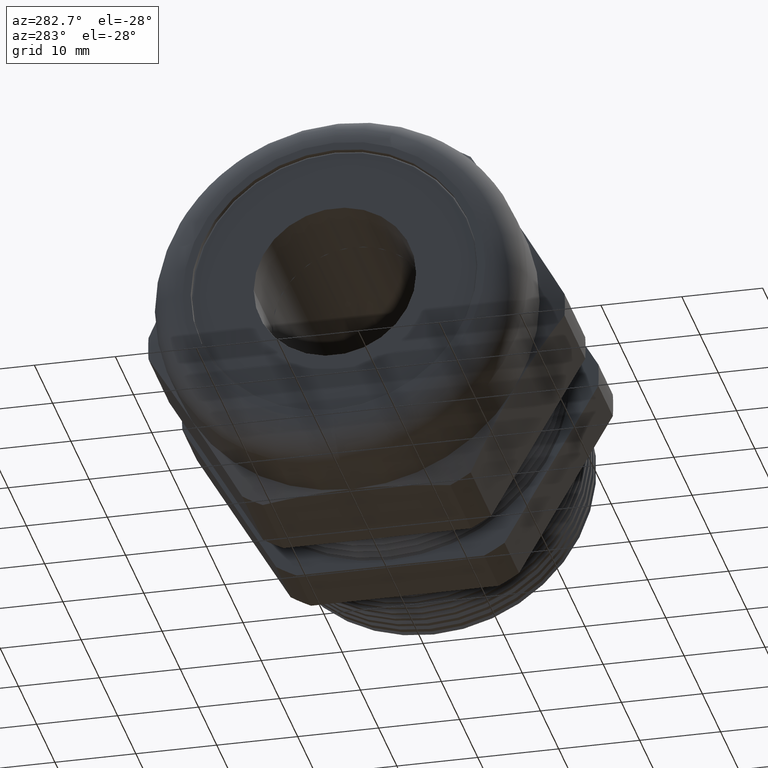
[diagram: clean part render]
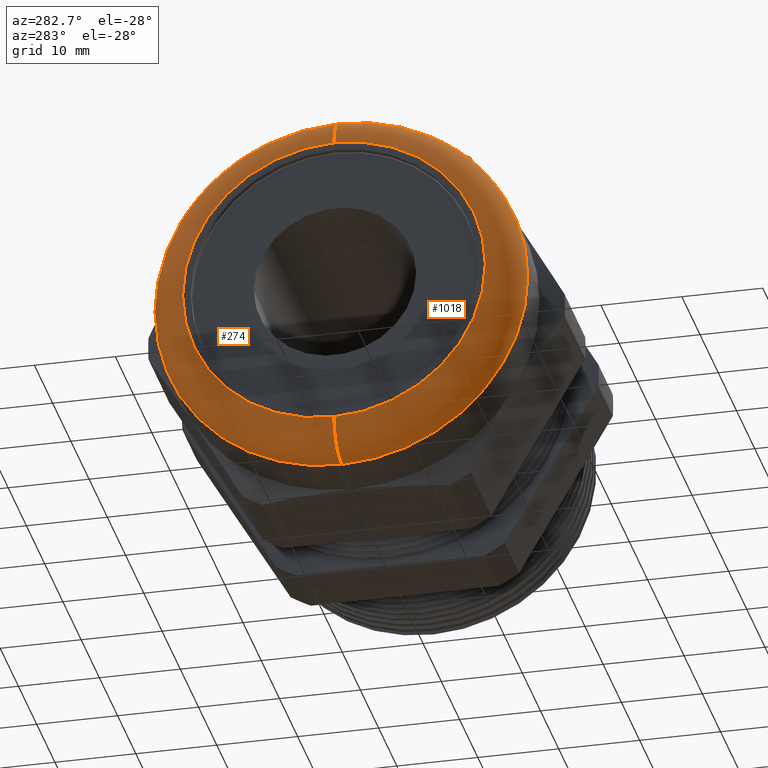
[diagram: same view with one multi-face feature highlighted, each face labeled with its STEP entity id]
A machine part, auxiliary view. The highlighted faces form ONE feature: a constant-radius fillet chain: 2 tangent blend faces with common blend radius 4.2824 mm. The faces share edges in the B-rep.
Their STEP definitions:
[1] entity #274 (Torus):
#250 = ORIENTED_EDGE ( 'NONE', *, *, #263, .F. ) ;
#263 = EDGE_CURVE ( 'NONE', #270, #266, #1585, .T. ) ;
#264 = ORIENTED_EDGE ( 'NONE', *, *, #267, .F. ) ;
#265 = VERTEX_POINT ( 'NONE', #1580 ) ;
#266 = VERTEX_POINT ( 'NONE', #1579 ) ;
#267 = EDGE_CURVE ( 'NONE', #266, #265, #1576, .T. ) ;
#268 = EDGE_CURVE ( 'NONE', #269, #270, #1636, .T. ) ;
#269 = VERTEX_POINT ( 'NONE', #1631 ) ;
#270 = VERTEX_POINT ( 'NONE', #1630 ) ;
#271 = EDGE_CURVE ( 'NONE', #269, #265, #1628, .T. ) ;
#272 = ORIENTED_EDGE ( 'NONE', *, *, #271, .T. ) ;
#273 = ORIENTED_EDGE ( 'NONE', *, *, #268, .F. ) ;
#274 = ADVANCED_FACE ( 'NONE', ( #1629 ), #1622, .T. ) ;
#277 = EDGE_LOOP ( 'NONE', ( #273, #272, #264, #250 ) ) ;
#1324 = DIRECTION ( 'NONE',  ( 0.0000000000000000000, 0.0000000000000000000, -1.000000000000000000 ) ) ;
#1573 = DIRECTION ( 'NONE',  ( 1.000000000000000000, 0.0000000000000000000, 0.0000000000000000000 ) ) ;
#1574 = CARTESIAN_POINT ( 'NONE',  ( -1.361399999999999900, 0.0000000000000000000, 0.0000000000000000000 ) ) ;
#1575 = AXIS2_PLACEMENT_3D ( 'NONE', #1574, #1573, #1324 ) ;
#1576 = CIRCLE ( 'NONE', #1575, 0.9049999999999999200 ) ;
#1579 = CARTESIAN_POINT ( 'NONE',  ( -1.361399999999999900, 1.108305353228354500E-016, -0.9049999999999999200 ) ) ;
#1580 = CARTESIAN_POINT ( 'NONE',  ( -1.361399999999999900, 0.0000000000000000000, 0.9049999999999999200 ) ) ;
#1581 = DIRECTION ( 'NONE',  ( 0.0000000000000000000, 0.0000000000000000000, -1.000000000000000000 ) ) ;
#1582 = DIRECTION ( 'NONE',  ( 0.0000000000000000000, -1.000000000000000000, 0.0000000000000000000 ) ) ;
#1583 = CARTESIAN_POINT ( 'NONE',  ( -1.361399999999999900, 0.0000000000000000000, -0.7363999999999998300 ) ) ;
#1584 = AXIS2_PLACEMENT_3D ( 'NONE', #1583, #1582, #1581 ) ;
#1585 = CIRCLE ( 'NONE', #1584, 0.1686000000000000800 ) ;
#1619 = DIRECTION ( 'NONE',  ( 0.0000000000000000000, 0.0000000000000000000, -1.000000000000000000 ) ) ;
#1620 = DIRECTION ( 'NONE',  ( 1.000000000000000000, 0.0000000000000000000, 0.0000000000000000000 ) ) ;
#1621 = AXIS2_PLACEMENT_3D ( 'NONE', #1623, #1620, #1619 ) ;
#1622 = TOROIDAL_SURFACE ( 'NONE', #1621, 0.7363999999999998300, 0.1686000000000001100 ) ;
#1623 = CARTESIAN_POINT ( 'NONE',  ( -1.361399999999999900, 0.0000000000000000000, 0.0000000000000000000 ) ) ;
#1624 = DIRECTION ( 'NONE',  ( 0.0000000000000000000, 1.224646799147353900E-016, 1.000000000000000000 ) ) ;
#1625 = DIRECTION ( 'NONE',  ( 0.0000000000000000000, 1.000000000000000000, -1.224646799147353200E-016 ) ) ;
#1626 = CARTESIAN_POINT ( 'NONE',  ( -1.361399999999999900, 9.018299028921107300E-017, 0.7363999999999998300 ) ) ;
#1627 = AXIS2_PLACEMENT_3D ( 'NONE', #1626, #1625, #1624 ) ;
#1628 = CIRCLE ( 'NONE', #1627, 0.1686000000000000800 ) ;
#1629 = FACE_OUTER_BOUND ( 'NONE', #277, .T. ) ;
#1630 = CARTESIAN_POINT ( 'NONE',  ( -1.530000000000000000, 0.0000000000000000000, -0.7363999999999998300 ) ) ;
#1631 = CARTESIAN_POINT ( 'NONE',  ( -1.530000000000000000, 1.005067628060232600E-016, 0.7363999999999998300 ) ) ;
#1632 = DIRECTION ( 'NONE',  ( 0.0000000000000000000, 0.0000000000000000000, -1.000000000000000000 ) ) ;
#1633 = DIRECTION ( 'NONE',  ( -1.000000000000000000, 0.0000000000000000000, 0.0000000000000000000 ) ) ;
#1634 = CARTESIAN_POINT ( 'NONE',  ( -1.530000000000000000, 0.0000000000000000000, 0.0000000000000000000 ) ) ;
#1635 = AXIS2_PLACEMENT_3D ( 'NONE', #1634, #1633, #1632 ) ;
#1636 = CIRCLE ( 'NONE', #1635, 0.7363999999999998300 ) ;
[2] entity #1018 (Torus):
#263 = EDGE_CURVE ( 'NONE', #270, #266, #1585, .T. ) ;
#265 = VERTEX_POINT ( 'NONE', #1580 ) ;
#266 = VERTEX_POINT ( 'NONE', #1579 ) ;
#269 = VERTEX_POINT ( 'NONE', #1631 ) ;
#270 = VERTEX_POINT ( 'NONE', #1630 ) ;
#271 = EDGE_CURVE ( 'NONE', #269, #265, #1628, .T. ) ;
#968 = EDGE_LOOP ( 'NONE', ( #1019, #1020, #1021, #1022 ) ) ;
#1018 = ADVANCED_FACE ( 'NONE', ( #3011 ), #3010, .T. ) ;
#1019 = ORIENTED_EDGE ( 'NONE', *, *, #271, .F. ) ;
#1020 = ORIENTED_EDGE ( 'NONE', *, *, #3854, .F. ) ;
#1021 = ORIENTED_EDGE ( 'NONE', *, *, #263, .T. ) ;
#1022 = ORIENTED_EDGE ( 'NONE', *, *, #4008, .F. ) ;
#1579 = CARTESIAN_POINT ( 'NONE',  ( -1.361399999999999900, 1.108305353228354500E-016, -0.9049999999999999200 ) ) ;
#1580 = CARTESIAN_POINT ( 'NONE',  ( -1.361399999999999900, 0.0000000000000000000, 0.9049999999999999200 ) ) ;
#1581 = DIRECTION ( 'NONE',  ( 0.0000000000000000000, 0.0000000000000000000, -1.000000000000000000 ) ) ;
#1582 = DIRECTION ( 'NONE',  ( 0.0000000000000000000, -1.000000000000000000, 0.0000000000000000000 ) ) ;
#1583 = CARTESIAN_POINT ( 'NONE',  ( -1.361399999999999900, 0.0000000000000000000, -0.7363999999999998300 ) ) ;
#1584 = AXIS2_PLACEMENT_3D ( 'NONE', #1583, #1582, #1581 ) ;
#1585 = CIRCLE ( 'NONE', #1584, 0.1686000000000000800 ) ;
#1624 = DIRECTION ( 'NONE',  ( 0.0000000000000000000, 1.224646799147353900E-016, 1.000000000000000000 ) ) ;
#1625 = DIRECTION ( 'NONE',  ( 0.0000000000000000000, 1.000000000000000000, -1.224646799147353200E-016 ) ) ;
#1626 = CARTESIAN_POINT ( 'NONE',  ( -1.361399999999999900, 9.018299028921107300E-017, 0.7363999999999998300 ) ) ;
#1627 = AXIS2_PLACEMENT_3D ( 'NONE', #1626, #1625, #1624 ) ;
#1628 = CIRCLE ( 'NONE', #1627, 0.1686000000000000800 ) ;
#1630 = CARTESIAN_POINT ( 'NONE',  ( -1.530000000000000000, 0.0000000000000000000, -0.7363999999999998300 ) ) ;
#1631 = CARTESIAN_POINT ( 'NONE',  ( -1.530000000000000000, 1.005067628060232600E-016, 0.7363999999999998300 ) ) ;
#3005 = DIRECTION ( 'NONE',  ( 0.0000000000000000000, 0.0000000000000000000, -1.000000000000000000 ) ) ;
#3006 = DIRECTION ( 'NONE',  ( 1.000000000000000000, 0.0000000000000000000, 0.0000000000000000000 ) ) ;
#3007 = CARTESIAN_POINT ( 'NONE',  ( -1.361399999999999900, 0.0000000000000000000, 0.0000000000000000000 ) ) ;
#3008 = AXIS2_PLACEMENT_3D ( 'NONE', #3007, #3006, #3005 ) ;
#3010 = TOROIDAL_SURFACE ( 'NONE', #3008, 0.7363999999999998300, 0.1686000000000001100 ) ;
#3011 = FACE_OUTER_BOUND ( 'NONE', #968, .T. ) ;
#3220 = DIRECTION ( 'NONE',  ( 0.0000000000000000000, 0.0000000000000000000, -1.000000000000000000 ) ) ;
#3221 = DIRECTION ( 'NONE',  ( -1.000000000000000000, 0.0000000000000000000, 0.0000000000000000000 ) ) ;
#3222 = CARTESIAN_POINT ( 'NONE',  ( -1.530000000000000000, 0.0000000000000000000, 0.0000000000000000000 ) ) ;
#3223 = AXIS2_PLACEMENT_3D ( 'NONE', #3222, #3221, #3220 ) ;
#3224 = CIRCLE ( 'NONE', #3223, 0.7363999999999998300 ) ;
#3431 = DIRECTION ( 'NONE',  ( 1.000000000000000000, 0.0000000000000000000, 0.0000000000000000000 ) ) ;
#3432 = CARTESIAN_POINT ( 'NONE',  ( -1.361399999999999900, 0.0000000000000000000, 0.0000000000000000000 ) ) ;
#3433 = AXIS2_PLACEMENT_3D ( 'NONE', #3432, #3431, #3494 ) ;
#3434 = CIRCLE ( 'NONE', #3433, 0.9049999999999999200 ) ;
#3494 = DIRECTION ( 'NONE',  ( 0.0000000000000000000, 0.0000000000000000000, -1.000000000000000000 ) ) ;
#3854 = EDGE_CURVE ( 'NONE', #270, #269, #3224, .T. ) ;
#4008 = EDGE_CURVE ( 'NONE', #265, #266, #3434, .T. ) ;